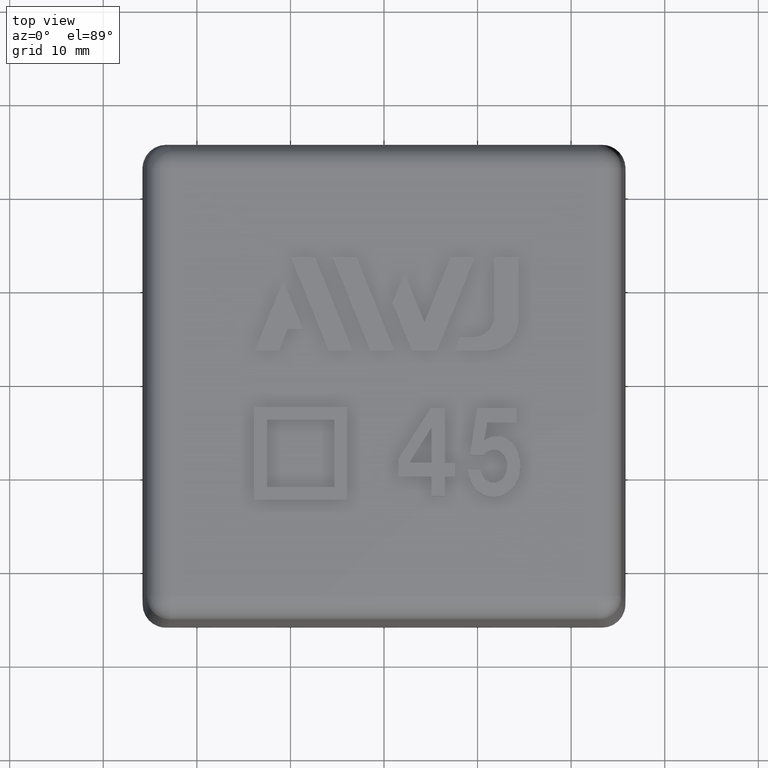
[diagram: clean part render]
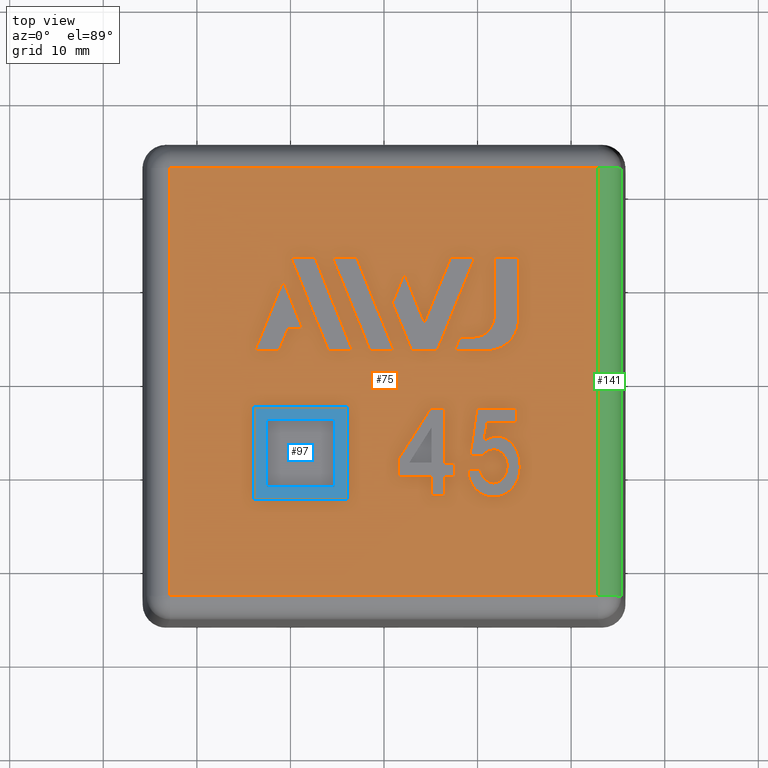
[diagram: same view with three faces highlighted in distinct colors, each labeled with its STEP entity id]
A machine part, top view with three faces highlighted in distinct colors.
Their STEP definitions:

[orange] entity #75 — the highlighted planar face has unit normal (0, 0, 1).
#75 = ADVANCED_FACE( '', ( #169, #170, #171, #172, #173, #174, #175, #176, #177 ), #178, .T. );
#169 = FACE_BOUND( '', #366, .T. );
#170 = FACE_OUTER_BOUND( '', #367, .T. );
#171 = FACE_BOUND( '', #368, .T. );
#172 = FACE_BOUND( '', #369, .T. );
#173 = FACE_BOUND( '', #370, .T. );
#174 = FACE_BOUND( '', #371, .T. );
#175 = FACE_BOUND( '', #372, .T. );
#176 = FACE_BOUND( '', #373, .T. );
#177 = FACE_BOUND( '', #374, .T. );
#178 = PLANE( '', #375 );
#366 = EDGE_LOOP( '', ( #566, #567, #568, #569, #570, #571, #572, #573, #574, #575, #576 ) );
#367 = EDGE_LOOP( '', ( #577, #578, #579, #580 ) );
#368 = EDGE_LOOP( '', ( #581, #582, #583, #584, #585, #586, #587, #588 ) );
#369 = EDGE_LOOP( '', ( #589, #590, #591, #592, #593, #594, #595 ) );
#370 = EDGE_LOOP( '', ( #596, #597, #598, #599 ) );
#371 = EDGE_LOOP( '', ( #600, #601, #602, #603 ) );
#372 = EDGE_LOOP( '', ( #604, #605, #606, #607, #608 ) );
#373 = EDGE_LOOP( '', ( #609, #610, #611, #612 ) );
#374 = EDGE_LOOP( '', ( #613, #614, #615, #616, #617, #618, #619, #620, #621, #622 ) );
#375 = AXIS2_PLACEMENT_3D( '', #623, #624, #625 );
#566 = ORIENTED_EDGE( '', *, *, #1324, .T. );
#567 = ORIENTED_EDGE( '', *, *, #1325, .T. );
#568 = ORIENTED_EDGE( '', *, *, #1326, .T. );
#569 = ORIENTED_EDGE( '', *, *, #1327, .T. );
#570 = ORIENTED_EDGE( '', *, *, #1328, .T. );
#571 = ORIENTED_EDGE( '', *, *, #1329, .T. );
#572 = ORIENTED_EDGE( '', *, *, #1330, .T. );
#573 = ORIENTED_EDGE( '', *, *, #1331, .T. );
#574 = ORIENTED_EDGE( '', *, *, #1332, .T. );
#575 = ORIENTED_EDGE( '', *, *, #1333, .T. );
#576 = ORIENTED_EDGE( '', *, *, #1334, .T. );
#577 = ORIENTED_EDGE( '', *, *, #1335, .T. );
#578 = ORIENTED_EDGE( '', *, *, #1336, .T. );
#579 = ORIENTED_EDGE( '', *, *, #1337, .T. );
#580 = ORIENTED_EDGE( '', *, *, #1338, .T. );
#581 = ORIENTED_EDGE( '', *, *, #1339, .F. );
#582 = ORIENTED_EDGE( '', *, *, #1340, .F. );
#583 = ORIENTED_EDGE( '', *, *, #1341, .F. );
#584 = ORIENTED_EDGE( '', *, *, #1342, .F. );
#585 = ORIENTED_EDGE( '', *, *, #1343, .F. );
#586 = ORIENTED_EDGE( '', *, *, #1344, .F. );
#587 = ORIENTED_EDGE( '', *, *, #1345, .F. );
#588 = ORIENTED_EDGE( '', *, *, #1346, .F. );
#589 = ORIENTED_EDGE( '', *, *, #1347, .F. );
#590 = ORIENTED_EDGE( '', *, *, #1348, .F. );
#591 = ORIENTED_EDGE( '', *, *, #1349, .F. );
#592 = ORIENTED_EDGE( '', *, *, #1350, .F. );
#593 = ORIENTED_EDGE( '', *, *, #1351, .F. );
#594 = ORIENTED_EDGE( '', *, *, #1352, .F. );
#595 = ORIENTED_EDGE( '', *, *, #1353, .F. );
#596 = ORIENTED_EDGE( '', *, *, #1354, .F. );
#597 = ORIENTED_EDGE( '', *, *, #1355, .F. );
#598 = ORIENTED_EDGE( '', *, *, #1356, .F. );
#599 = ORIENTED_EDGE( '', *, *, #1357, .F. );
#600 = ORIENTED_EDGE( '', *, *, #1358, .F. );
#601 = ORIENTED_EDGE( '', *, *, #1359, .F. );
#602 = ORIENTED_EDGE( '', *, *, #1360, .F. );
#603 = ORIENTED_EDGE( '', *, *, #1361, .F. );
#604 = ORIENTED_EDGE( '', *, *, #1362, .F. );
#605 = ORIENTED_EDGE( '', *, *, #1363, .F. );
#606 = ORIENTED_EDGE( '', *, *, #1364, .F. );
#607 = ORIENTED_EDGE( '', *, *, #1365, .F. );
#608 = ORIENTED_EDGE( '', *, *, #1366, .F. );
#609 = ORIENTED_EDGE( '', *, *, #1367, .T. );
#610 = ORIENTED_EDGE( '', *, *, #1368, .T. );
#611 = ORIENTED_EDGE( '', *, *, #1369, .T. );
#612 = ORIENTED_EDGE( '', *, *, #1370, .T. );
#613 = ORIENTED_EDGE( '', *, *, #1371, .T. );
#614 = ORIENTED_EDGE( '', *, *, #1372, .T. );
#615 = ORIENTED_EDGE( '', *, *, #1373, .T. );
#616 = ORIENTED_EDGE( '', *, *, #1374, .T. );
#617 = ORIENTED_EDGE( '', *, *, #1375, .T. );
#618 = ORIENTED_EDGE( '', *, *, #1376, .T. );
#619 = ORIENTED_EDGE( '', *, *, #1377, .T. );
#620 = ORIENTED_EDGE( '', *, *, #1378, .T. );
#621 = ORIENTED_EDGE( '', *, *, #1379, .T. );
#622 = ORIENTED_EDGE( '', *, *, #1380, .T. );
#623 = CARTESIAN_POINT( '', ( -25.8000000000000, -25.8000000000000, 27.5000000000000 ) );
#624 = DIRECTION( '', ( 0.000000000000000, 0.000000000000000, 1.00000000000000 ) );
#625 = DIRECTION( '', ( 0.000000000000000, -1.00000000000000, 0.000000000000000 ) );
#1324 = EDGE_CURVE( '', #1552, #1553, #1554, .T. );
#1325 = EDGE_CURVE( '', #1553, #1555, #1556, .T. );
#1326 = EDGE_CURVE( '', #1555, #1557, #1558, .T. );
#1327 = EDGE_CURVE( '', #1557, #1559, #1560, .T. );
#1328 = EDGE_CURVE( '', #1559, #1561, #1562, .T. );
#1329 = EDGE_CURVE( '', #1561, #1563, #1564, .T. );
#1330 = EDGE_CURVE( '', #1563, #1565, #1566, .T. );
#1331 = EDGE_CURVE( '', #1565, #1567, #1568, .T. );
#1332 = EDGE_CURVE( '', #1567, #1569, #1570, .T. );
#1333 = EDGE_CURVE( '', #1569, #1571, #1572, .T. );
#1334 = EDGE_CURVE( '', #1571, #1552, #1573, .T. );
#1335 = EDGE_CURVE( '', #1574, #1575, #1576, .F. );
#1336 = EDGE_CURVE( '', #1575, #1577, #1578, .F. );
#1337 = EDGE_CURVE( '', #1577, #1579, #1580, .F. );
#1338 = EDGE_CURVE( '', #1579, #1574, #1581, .F. );
#1339 = EDGE_CURVE( '', #1582, #1583, #1584, .T. );
#1340 = EDGE_CURVE( '', #1585, #1582, #1586, .T. );
#1341 = EDGE_CURVE( '', #1587, #1585, #1588, .T. );
#1342 = EDGE_CURVE( '', #1589, #1587, #1590, .T. );
#1343 = EDGE_CURVE( '', #1591, #1589, #1592, .T. );
#1344 = EDGE_CURVE( '', #1593, #1591, #1594, .T. );
#1345 = EDGE_CURVE( '', #1595, #1593, #1596, .T. );
#1346 = EDGE_CURVE( '', #1583, #1595, #1597, .T. );
#1347 = EDGE_CURVE( '', #1598, #1599, #1600, .T. );
#1348 = EDGE_CURVE( '', #1601, #1598, #1602, .T. );
#1349 = EDGE_CURVE( '', #1603, #1601, #1604, .T. );
#1350 = EDGE_CURVE( '', #1605, #1603, #1606, .T. );
#1351 = EDGE_CURVE( '', #1607, #1605, #1608, .T. );
#1352 = EDGE_CURVE( '', #1609, #1607, #1610, .T. );
#1353 = EDGE_CURVE( '', #1599, #1609, #1611, .T. );
#1354 = EDGE_CURVE( '', #1612, #1613, #1614, .T. );
#1355 = EDGE_CURVE( '', #1615, #1612, #1616, .T. );
#1356 = EDGE_CURVE( '', #1617, #1615, #1618, .T. );
#1357 = EDGE_CURVE( '', #1613, #1617, #1619, .T. );
#1358 = EDGE_CURVE( '', #1620, #1621, #1622, .T. );
#1359 = EDGE_CURVE( '', #1623, #1620, #1624, .T. );
#1360 = EDGE_CURVE( '', #1625, #1623, #1626, .T. );
#1361 = EDGE_CURVE( '', #1621, #1625, #1627, .T. );
#1362 = EDGE_CURVE( '', #1628, #1629, #1630, .T. );
#1363 = EDGE_CURVE( '', #1631, #1628, #1632, .T. );
#1364 = EDGE_CURVE( '', #1633, #1631, #1634, .T. );
#1365 = EDGE_CURVE( '', #1635, #1633, #1636, .T. );
#1366 = EDGE_CURVE( '', #1629, #1635, #1637, .T. );
#1367 = EDGE_CURVE( '', #1638, #1639, #1640, .T. );
#1368 = EDGE_CURVE( '', #1639, #1641, #1642, .T. );
#1369 = EDGE_CURVE( '', #1641, #1643, #1644, .T. );
#1370 = EDGE_CURVE( '', #1643, #1638, #1645, .T. );
#1371 = EDGE_CURVE( '', #1646, #1647, #1648, .T. );
#1372 = EDGE_CURVE( '', #1647, #1649, #1650, .T. );
#1373 = EDGE_CURVE( '', #1649, #1651, #1652, .T. );
#1374 = EDGE_CURVE( '', #1651, #1653, #1654, .T. );
#1375 = EDGE_CURVE( '', #1653, #1655, #1656, .T. );
#1376 = EDGE_CURVE( '', #1655, #1657, #1658, .T. );
#1377 = EDGE_CURVE( '', #1657, #1659, #1660, .T. );
#1378 = EDGE_CURVE( '', #1659, #1661, #1662, .T. );
#1379 = EDGE_CURVE( '', #1661, #1663, #1664, .T. );
#1380 = EDGE_CURVE( '', #1663, #1646, #1665, .T. );
#1552 = VERTEX_POINT( '', #1928 );
#1553 = VERTEX_POINT( '', #1929 );
#1554 = B_SPLINE_CURVE_WITH_KNOTS( '', 2, ( #1930, #1931, #1932 ), .UNSPECIFIED., .F., .F., ( 3, 3 ), ( 10.0000000000000, 11.0000000000000 ), .UNSPECIFIED. );
#1555 = VERTEX_POINT( '', #1933 );
#1556 = B_SPLINE_CURVE_WITH_KNOTS( '', 2, ( #1934, #1935, #1936 ), .UNSPECIFIED., .F., .F., ( 3, 3 ), ( 0.000000000000000, 1.00000000000000 ), .UNSPECIFIED. );
#1557 = VERTEX_POINT( '', #1937 );
#1558 = B_SPLINE_CURVE_WITH_KNOTS( '', 2, ( #1938, #1939, #1940 ), .UNSPECIFIED., .F., .F., ( 3, 3 ), ( 1.00000000000000, 2.00000000000000 ), .UNSPECIFIED. );
#1559 = VERTEX_POINT( '', #1941 );
#1560 = B_SPLINE_CURVE_WITH_KNOTS( '', 2, ( #1942, #1943, #1944 ), .UNSPECIFIED., .F., .F., ( 3, 3 ), ( 2.00000000000000, 3.00000000000000 ), .UNSPECIFIED. );
#1561 = VERTEX_POINT( '', #1945 );
#1562 = B_SPLINE_CURVE_WITH_KNOTS( '', 2, ( #1946, #1947, #1948 ), .UNSPECIFIED., .F., .F., ( 3, 3 ), ( 3.00000000000000, 4.00000000000000 ), .UNSPECIFIED. );
#1563 = VERTEX_POINT( '', #1949 );
#1564 = B_SPLINE_CURVE_WITH_KNOTS( '', 2, ( #1950, #1951, #1952 ), .UNSPECIFIED., .F., .F., ( 3, 3 ), ( 4.00000000000000, 5.00000000000000 ), .UNSPECIFIED. );
#1565 = VERTEX_POINT( '', #1953 );
#1566 = B_SPLINE_CURVE_WITH_KNOTS( '', 2, ( #1954, #1955, #1956 ), .UNSPECIFIED., .F., .F., ( 3, 3 ), ( 5.00000000000000, 6.00000000000000 ), .UNSPECIFIED. );
#1567 = VERTEX_POINT( '', #1957 );
#1568 = B_SPLINE_CURVE_WITH_KNOTS( '', 2, ( #1958, #1959, #1960 ), .UNSPECIFIED., .F., .F., ( 3, 3 ), ( 6.00000000000000, 7.00000000000000 ), .UNSPECIFIED. );
#1569 = VERTEX_POINT( '', #1961 );
#1570 = B_SPLINE_CURVE_WITH_KNOTS( '', 2, ( #1962, #1963, #1964 ), .UNSPECIFIED., .F., .F., ( 3, 3 ), ( 7.00000000000000, 8.00000000000000 ), .UNSPECIFIED. );
#1571 = VERTEX_POINT( '', #1965 );
#1572 = B_SPLINE_CURVE_WITH_KNOTS( '', 2, ( #1966, #1967, #1968 ), .UNSPECIFIED., .F., .F., ( 3, 3 ), ( 8.00000000000000, 9.00000000000000 ), .UNSPECIFIED. );
#1573 = B_SPLINE_CURVE_WITH_KNOTS( '', 2, ( #1969, #1970, #1971 ), .UNSPECIFIED., .F., .F., ( 3, 3 ), ( 9.00000000000000, 10.0000000000000 ), .UNSPECIFIED. );
#1574 = VERTEX_POINT( '', #1972 );
#1575 = VERTEX_POINT( '', #1973 );
#1576 = LINE( '', #1974, #1975 );
#1577 = VERTEX_POINT( '', #1976 );
#1578 = LINE( '', #1977, #1978 );
#1579 = VERTEX_POINT( '', #1979 );
#1580 = LINE( '', #1980, #1981 );
#1581 = LINE( '', #1982, #1983 );
#1582 = VERTEX_POINT( '', #1984 );
#1583 = VERTEX_POINT( '', #1985 );
#1584 = LINE( '', #1986, #1987 );
#1585 = VERTEX_POINT( '', #1988 );
#1586 = LINE( '', #1989, #1990 );
#1587 = VERTEX_POINT( '', #1991 );
#1588 = LINE( '', #1992, #1993 );
#1589 = VERTEX_POINT( '', #1994 );
#1590 = CIRCLE( '', #1995, 3.33666750000000 );
#1591 = VERTEX_POINT( '', #1996 );
#1592 = LINE( '', #1997, #1998 );
#1593 = VERTEX_POINT( '', #1999 );
#1594 = LINE( '', #2000, #2001 );
#1595 = VERTEX_POINT( '', #2002 );
#1596 = LINE( '', #2003, #2004 );
#1597 = CIRCLE( '', #2005, 2.22444500000000 );
#1598 = VERTEX_POINT( '', #2006 );
#1599 = VERTEX_POINT( '', #2007 );
#1600 = LINE( '', #2008, #2009 );
#1601 = VERTEX_POINT( '', #2010 );
#1602 = LINE( '', #2011, #2012 );
#1603 = VERTEX_POINT( '', #2013 );
#1604 = LINE( '', #2014, #2015 );
#1605 = VERTEX_POINT( '', #2016 );
#1606 = LINE( '', #2017, #2018 );
#1607 = VERTEX_POINT( '', #2019 );
#1608 = LINE( '', #2020, #2021 );
#1609 = VERTEX_POINT( '', #2022 );
#1610 = LINE( '', #2023, #2024 );
#1611 = LINE( '', #2025, #2026 );
#1612 = VERTEX_POINT( '', #2027 );
#1613 = VERTEX_POINT( '', #2028 );
#1614 = LINE( '', #2029, #2030 );
#1615 = VERTEX_POINT( '', #2031 );
#1616 = LINE( '', #2032, #2033 );
#1617 = VERTEX_POINT( '', #2034 );
#1618 = LINE( '', #2035, #2036 );
#1619 = LINE( '', #2037, #2038 );
#1620 = VERTEX_POINT( '', #2039 );
#1621 = VERTEX_POINT( '', #2040 );
#1622 = LINE( '', #2041, #2042 );
#1623 = VERTEX_POINT( '', #2043 );
#1624 = LINE( '', #2044, #2045 );
#1625 = VERTEX_POINT( '', #2046 );
#1626 = LINE( '', #2047, #2048 );
#1627 = LINE( '', #2049, #2050 );
#1628 = VERTEX_POINT( '', #2051 );
#1629 = VERTEX_POINT( '', #2052 );
#1630 = LINE( '', #2053, #2054 );
#1631 = VERTEX_POINT( '', #2055 );
#1632 = LINE( '', #2056, #2057 );
#1633 = VERTEX_POINT( '', #2058 );
#1634 = LINE( '', #2059, #2060 );
#1635 = VERTEX_POINT( '', #2061 );
#1636 = LINE( '', #2062, #2063 );
#1637 = LINE( '', #2064, #2065 );
#1638 = VERTEX_POINT( '', #2066 );
#1639 = VERTEX_POINT( '', #2067 );
#1640 = B_SPLINE_CURVE_WITH_KNOTS( '', 2, ( #2068, #2069, #2070 ), .UNSPECIFIED., .F., .F., ( 3, 3 ), ( 3.00000000000000, 4.00000000000000 ), .UNSPECIFIED. );
#1641 = VERTEX_POINT( '', #2071 );
#1642 = B_SPLINE_CURVE_WITH_KNOTS( '', 2, ( #2072, #2073, #2074 ), .UNSPECIFIED., .F., .F., ( 3, 3 ), ( 0.000000000000000, 1.00000000000000 ), .UNSPECIFIED. );
#1643 = VERTEX_POINT( '', #2075 );
#1644 = B_SPLINE_CURVE_WITH_KNOTS( '', 2, ( #2076, #2077, #2078 ), .UNSPECIFIED., .F., .F., ( 3, 3 ), ( 1.00000000000000, 2.00000000000000 ), .UNSPECIFIED. );
#1645 = B_SPLINE_CURVE_WITH_KNOTS( '', 2, ( #2079, #2080, #2081 ), .UNSPECIFIED., .F., .F., ( 3, 3 ), ( 2.00000000000000, 3.00000000000000 ), .UNSPECIFIED. );
#1646 = VERTEX_POINT( '', #2082 );
#1647 = VERTEX_POINT( '', #2083 );
#1648 = B_SPLINE_CURVE_WITH_KNOTS( '', 2, ( #2084, #2085, #2086, #2087, #2088, #2089, #2090, #2091, #2092, #2093, #2094, #2095, #2096 ), .UNSPECIFIED., .F., .F., ( 3, 2, 2, 2, 2, 2, 3 ), ( 14.0000000000000, 15.0000000000000, 16.0000000000000, 17.0000000000000, 18.0000000000000, 19.0000000000000, 20.0000000000000 ), .UNSPECIFIED. );
#1649 = VERTEX_POINT( '', #2097 );
#1650 = B_SPLINE_CURVE_WITH_KNOTS( '', 2, ( #2098, #2099, #2100 ), .UNSPECIFIED., .F., .F., ( 3, 3 ), ( 0.000000000000000, 1.00000000000000 ), .UNSPECIFIED. );
#1651 = VERTEX_POINT( '', #2101 );
#1652 = B_SPLINE_CURVE_WITH_KNOTS( '', 2, ( #2102, #2103, #2104 ), .UNSPECIFIED., .F., .F., ( 3, 3 ), ( 1.00000000000000, 2.00000000000000 ), .UNSPECIFIED. );
#1653 = VERTEX_POINT( '', #2105 );
#1654 = B_SPLINE_CURVE_WITH_KNOTS( '', 2, ( #2106, #2107, #2108, #2109, #2110, #2111, #2112, #2113, #2114, #2115, #2116, #2117, #2118 ), .UNSPECIFIED., .F., .F., ( 3, 2, 2, 2, 2, 2, 3 ), ( 2.00000000000000, 3.00000000000000, 4.00000000000000, 5.00000000000000, 6.00000000000000, 7.00000000000000, 8.00000000000000 ), .UNSPECIFIED. );
#1655 = VERTEX_POINT( '', #2119 );
#1656 = B_SPLINE_CURVE_WITH_KNOTS( '', 2, ( #2120, #2121, #2122 ), .UNSPECIFIED., .F., .F., ( 3, 3 ), ( 8.00000000000000, 9.00000000000000 ), .UNSPECIFIED. );
#1657 = VERTEX_POINT( '', #2123 );
#1658 = B_SPLINE_CURVE_WITH_KNOTS( '', 2, ( #2124, #2125, #2126 ), .UNSPECIFIED., .F., .F., ( 3, 3 ), ( 9.00000000000000, 10.0000000000000 ), .UNSPECIFIED. );
#1659 = VERTEX_POINT( '', #2127 );
#1660 = B_SPLINE_CURVE_WITH_KNOTS( '', 2, ( #2128, #2129, #2130 ), .UNSPECIFIED., .F., .F., ( 3, 3 ), ( 10.0000000000000, 11.0000000000000 ), .UNSPECIFIED. );
#1661 = VERTEX_POINT( '', #2131 );
#1662 = B_SPLINE_CURVE_WITH_KNOTS( '', 2, ( #2132, #2133, #2134 ), .UNSPECIFIED., .F., .F., ( 3, 3 ), ( 11.0000000000000, 12.0000000000000 ), .UNSPECIFIED. );
#1663 = VERTEX_POINT( '', #2135 );
#1664 = B_SPLINE_CURVE_WITH_KNOTS( '', 2, ( #2136, #2137, #2138 ), .UNSPECIFIED., .F., .F., ( 3, 3 ), ( 12.0000000000000, 13.0000000000000 ), .UNSPECIFIED. );
#1665 = B_SPLINE_CURVE_WITH_KNOTS( '', 2, ( #2139, #2140, #2141 ), .UNSPECIFIED., .F., .F., ( 3, 3 ), ( 13.0000000000000, 14.0000000000000 ), .UNSPECIFIED. );
#1928 = CARTESIAN_POINT( '', ( 5.05988295454538, -10.1681000000000, 27.5000000000000 ) );
#1929 = CARTESIAN_POINT( '', ( 1.55988295454539, -10.1681000000000, 27.5000000000000 ) );
#1930 = CARTESIAN_POINT( '', ( 5.05988295454538, -10.1681000000000, 27.5000000000000 ) );
#1931 = CARTESIAN_POINT( '', ( 3.30988295454538, -10.1681000000000, 27.5000000000000 ) );
#1932 = CARTESIAN_POINT( '', ( 1.55988295454539, -10.1681000000000, 27.5000000000000 ) );
#1933 = CARTESIAN_POINT( '', ( 1.55988295454539, -8.21355454545456, 27.5000000000000 ) );
#1934 = CARTESIAN_POINT( '', ( 1.55988295454539, -10.1681000000000, 27.5000000000000 ) );
#1935 = CARTESIAN_POINT( '', ( 1.55988295454539, -9.19082727272729, 27.5000000000000 ) );
#1936 = CARTESIAN_POINT( '', ( 1.55988295454539, -8.21355454545456, 27.5000000000000 ) );
#1937 = CARTESIAN_POINT( '', ( 4.96897386363629, -2.84991818181821, 27.5000000000000 ) );
#1938 = CARTESIAN_POINT( '', ( 1.55988295454539, -8.21355454545456, 27.5000000000000 ) );
#1939 = CARTESIAN_POINT( '', ( 3.26442840909084, -5.53173636363639, 27.5000000000000 ) );
#1940 = CARTESIAN_POINT( '', ( 4.96897386363629, -2.84991818181821, 27.5000000000000 ) );
#1941 = CARTESIAN_POINT( '', ( 6.51442840909084, -2.84991818181821, 27.5000000000000 ) );
#1942 = CARTESIAN_POINT( '', ( 4.96897386363629, -2.84991818181821, 27.5000000000000 ) );
#1943 = CARTESIAN_POINT( '', ( 5.74170113636356, -2.84991818181821, 27.5000000000000 ) );
#1944 = CARTESIAN_POINT( '', ( 6.51442840909084, -2.84991818181821, 27.5000000000000 ) );
#1945 = CARTESIAN_POINT( '', ( 6.51442840909084, -8.71355454545456, 27.5000000000000 ) );
#1946 = CARTESIAN_POINT( '', ( 6.51442840909084, -2.84991818181821, 27.5000000000000 ) );
#1947 = CARTESIAN_POINT( '', ( 6.51442840909084, -5.78173636363639, 27.5000000000000 ) );
#1948 = CARTESIAN_POINT( '', ( 6.51442840909084, -8.71355454545456, 27.5000000000000 ) );
#1949 = CARTESIAN_POINT( '', ( 7.55988295454538, -8.71355454545456, 27.5000000000000 ) );
#1950 = CARTESIAN_POINT( '', ( 6.51442840909084, -8.71355454545456, 27.5000000000000 ) );
#1951 = CARTESIAN_POINT( '', ( 7.03715568181811, -8.71355454545456, 27.5000000000000 ) );
#1952 = CARTESIAN_POINT( '', ( 7.55988295454538, -8.71355454545456, 27.5000000000000 ) );
#1953 = CARTESIAN_POINT( '', ( 7.55988295454538, -10.1681000000000, 27.5000000000000 ) );
#1954 = CARTESIAN_POINT( '', ( 7.55988295454538, -8.71355454545456, 27.5000000000000 ) );
#1955 = CARTESIAN_POINT( '', ( 7.55988295454538, -9.44082727272729, 27.5000000000000 ) );
#1956 = CARTESIAN_POINT( '', ( 7.55988295454538, -10.1681000000000, 27.5000000000000 ) );
#1957 = CARTESIAN_POINT( '', ( 6.51442840909084, -10.1681000000000, 27.5000000000000 ) );
#1958 = CARTESIAN_POINT( '', ( 7.55988295454538, -10.1681000000000, 27.5000000000000 ) );
#1959 = CARTESIAN_POINT( '', ( 7.03715568181811, -10.1681000000000, 27.5000000000000 ) );
#1960 = CARTESIAN_POINT( '', ( 6.51442840909084, -10.1681000000000, 27.5000000000000 ) );
#1961 = CARTESIAN_POINT( '', ( 6.51442840909084, -12.2135545454546, 27.5000000000000 ) );
#1962 = CARTESIAN_POINT( '', ( 6.51442840909084, -10.1681000000000, 27.5000000000000 ) );
#1963 = CARTESIAN_POINT( '', ( 6.51442840909084, -11.1908272727273, 27.5000000000000 ) );
#1964 = CARTESIAN_POINT( '', ( 6.51442840909084, -12.2135545454546, 27.5000000000000 ) );
#1965 = CARTESIAN_POINT( '', ( 5.05988295454538, -12.2135545454546, 27.5000000000000 ) );
#1966 = CARTESIAN_POINT( '', ( 6.51442840909084, -12.2135545454546, 27.5000000000000 ) );
#1967 = CARTESIAN_POINT( '', ( 5.78715568181811, -12.2135545454546, 27.5000000000000 ) );
#1968 = CARTESIAN_POINT( '', ( 5.05988295454538, -12.2135545454546, 27.5000000000000 ) );
#1969 = CARTESIAN_POINT( '', ( 5.05988295454538, -12.2135545454546, 27.5000000000000 ) );
#1970 = CARTESIAN_POINT( '', ( 5.05988295454538, -11.1908272727273, 27.5000000000000 ) );
#1971 = CARTESIAN_POINT( '', ( 5.05988295454538, -10.1681000000000, 27.5000000000000 ) );
#1972 = CARTESIAN_POINT( '', ( -22.8632425566848, -22.8632425566848, 27.5000000000000 ) );
#1973 = CARTESIAN_POINT( '', ( 22.8632425566848, -22.8632425566848, 27.5000000000000 ) );
#1974 = CARTESIAN_POINT( '', ( 22.8203664765830, -22.8632425566848, 27.5000000000000 ) );
#1975 = VECTOR( '', #2616, 1000.00000000000 );
#1976 = CARTESIAN_POINT( '', ( 22.8632425566848, 22.8632425566848, 27.5000000000000 ) );
#1977 = CARTESIAN_POINT( '', ( 22.8632425566848, 22.8203664765830, 27.5000000000000 ) );
#1978 = VECTOR( '', #2617, 1000.00000000000 );
#1979 = CARTESIAN_POINT( '', ( -22.8632425566848, 22.8632425566848, 27.5000000000000 ) );
#1980 = CARTESIAN_POINT( '', ( -22.8203664765830, 22.8632425566848, 27.5000000000000 ) );
#1981 = VECTOR( '', #2618, 1000.00000000000 );
#1982 = CARTESIAN_POINT( '', ( -22.8632425566848, -22.8203664765830, 27.5000000000000 ) );
#1983 = VECTOR( '', #2619, 1000.00000000000 );
#1984 = CARTESIAN_POINT( '', ( 11.7742270843900, 13.3295783770600, 27.5000000000000 ) );
#1985 = CARTESIAN_POINT( '', ( 11.7742270843900, 7.00592279439248, 27.5000000000000 ) );
#1986 = CARTESIAN_POINT( '', ( 11.7742270843900, 13.3295783770600, 27.5000000000000 ) );
#1987 = VECTOR( '', #2620, 1000.00000000000 );
#1988 = CARTESIAN_POINT( '', ( 14.3883347883750, 13.3295783770600, 27.5000000000000 ) );
#1989 = CARTESIAN_POINT( '', ( 14.3883347883750, 13.3295783770600, 27.5000000000000 ) );
#1990 = VECTOR( '', #2621, 1000.00000000000 );
#1991 = CARTESIAN_POINT( '', ( 14.3883347883750, 6.66356624999996, 27.5000000000000 ) );
#1992 = CARTESIAN_POINT( '', ( 14.3883347883750, 6.66356624999996, 27.5000000000000 ) );
#1993 = VECTOR( '', #2622, 1000.00000000000 );
#1994 = CARTESIAN_POINT( '', ( 11.0516672883750, 3.32689874999996, 27.5000000000000 ) );
#1995 = AXIS2_PLACEMENT_3D( '', #2623, #2624, #2625 );
#1996 = CARTESIAN_POINT( '', ( 7.54128954165747, 3.32689874999996, 27.5000000000000 ) );
#1997 = CARTESIAN_POINT( '', ( 7.54128954165747, 3.32689874999996, 27.5000000000000 ) );
#1998 = VECTOR( '', #2626, 1000.00000000000 );
#1999 = CARTESIAN_POINT( '', ( 8.12897678843246, 4.78147779439248, 27.5000000000000 ) );
#2000 = CARTESIAN_POINT( '', ( 8.12897678843246, 4.78147779439248, 27.5000000000000 ) );
#2001 = VECTOR( '', #2627, 1000.00000000000 );
#2002 = CARTESIAN_POINT( '', ( 9.54978208438996, 4.78147779439248, 27.5000000000000 ) );
#2003 = CARTESIAN_POINT( '', ( 9.54978208438996, 4.78147779439248, 27.5000000000000 ) );
#2004 = VECTOR( '', #2628, 1000.00000000000 );
#2005 = AXIS2_PLACEMENT_3D( '', #2629, #2630, #2631 );
#2006 = CARTESIAN_POINT( '', ( 9.72260366532997, 13.3295783770600, 27.5000000000000 ) );
#2007 = CARTESIAN_POINT( '', ( 7.13780969755497, 13.3295783770600, 27.5000000000000 ) );
#2008 = CARTESIAN_POINT( '', ( 9.72260366532997, 13.3295783770600, 27.5000000000000 ) );
#2009 = VECTOR( '', #2632, 1000.00000000000 );
#2010 = CARTESIAN_POINT( '', ( 5.68146110716495, 3.32689874999996, 27.5000000000000 ) );
#2011 = CARTESIAN_POINT( '', ( 5.68146110716495, 3.32689874999996, 27.5000000000000 ) );
#2012 = VECTOR( '', #2633, 1000.00000000000 );
#2013 = CARTESIAN_POINT( '', ( 2.94909412142246, 3.32689874999996, 27.5000000000000 ) );
#2014 = CARTESIAN_POINT( '', ( 2.94909412142246, 3.32689874999996, 27.5000000000000 ) );
#2015 = VECTOR( '', #2634, 1000.00000000000 );
#2016 = CARTESIAN_POINT( '', ( 0.889783020442474, 8.42298323719248, 27.5000000000000 ) );
#2017 = CARTESIAN_POINT( '', ( 0.889783020442474, 8.42298323719248, 27.5000000000000 ) );
#2018 = VECTOR( '', #2635, 1000.00000000000 );
#2019 = CARTESIAN_POINT( '', ( 2.18218000432997, 11.6223379717875, 27.5000000000000 ) );
#2020 = CARTESIAN_POINT( '', ( 2.18218000432997, 11.6223379717875, 27.5000000000000 ) );
#2021 = VECTOR( '', #2636, 1000.00000000000 );
#2022 = CARTESIAN_POINT( '', ( 4.31499344144497, 6.34368327344247, 27.5000000000000 ) );
#2023 = CARTESIAN_POINT( '', ( 4.31499344144497, 6.34368327344247, 27.5000000000000 ) );
#2024 = VECTOR( '', #2637, 1000.00000000000 );
#2025 = CARTESIAN_POINT( '', ( 7.13780969755497, 13.3295783770600, 27.5000000000000 ) );
#2026 = VECTOR( '', #2638, 1000.00000000000 );
#2027 = CARTESIAN_POINT( '', ( 1.08926679915246, 3.32689874999996, 27.5000000000000 ) );
#2028 = CARTESIAN_POINT( '', ( -2.95251083806004, 13.3295783770600, 27.5000000000000 ) );
#2029 = CARTESIAN_POINT( '', ( 1.08926679915246, 3.32689874999996, 27.5000000000000 ) );
#2030 = VECTOR( '', #2639, 1000.00000000000 );
#2031 = CARTESIAN_POINT( '', ( -1.49549380194754, 3.32689874999996, 27.5000000000000 ) );
#2032 = CARTESIAN_POINT( '', ( -1.49549380194754, 3.32689874999996, 27.5000000000000 ) );
#2033 = VECTOR( '', #2640, 1000.00000000000 );
#2034 = CARTESIAN_POINT( '', ( -5.53727032693753, 13.3295783770600, 27.5000000000000 ) );
#2035 = CARTESIAN_POINT( '', ( -5.53727032693753, 13.3295783770600, 27.5000000000000 ) );
#2036 = VECTOR( '', #2641, 1000.00000000000 );
#2037 = CARTESIAN_POINT( '', ( -2.95251083806004, 13.3295783770600, 27.5000000000000 ) );
#2038 = VECTOR( '', #2642, 1000.00000000000 );
#2039 = CARTESIAN_POINT( '', ( -3.35538785756753, 3.32689874999996, 27.5000000000000 ) );
#2040 = CARTESIAN_POINT( '', ( -7.39716549478004, 13.3295783770600, 27.5000000000000 ) );
#2041 = CARTESIAN_POINT( '', ( -3.35538785756753, 3.32689874999996, 27.5000000000000 ) );
#2042 = VECTOR( '', #2643, 1000.00000000000 );
#2043 = CARTESIAN_POINT( '', ( -5.93996382973254, 3.32689874999996, 27.5000000000000 ) );
#2044 = CARTESIAN_POINT( '', ( -5.93996382973254, 3.32689874999996, 27.5000000000000 ) );
#2045 = VECTOR( '', #2644, 1000.00000000000 );
#2046 = CARTESIAN_POINT( '', ( -9.98117312124753, 13.3295783770600, 27.5000000000000 ) );
#2047 = CARTESIAN_POINT( '', ( -9.98117312124753, 13.3295783770600, 27.5000000000000 ) );
#2048 = VECTOR( '', #2645, 1000.00000000000 );
#2049 = CARTESIAN_POINT( '', ( -7.39716549478004, 13.3295783770600, 27.5000000000000 ) );
#2050 = VECTOR( '', #2646, 1000.00000000000 );
#2051 = CARTESIAN_POINT( '', ( -13.8014227298000, 3.32689874999996, 27.5000000000000 ) );
#2052 = CARTESIAN_POINT( '', ( -11.2174151033325, 3.32689874999996, 27.5000000000000 ) );
#2053 = CARTESIAN_POINT( '', ( -13.8014227298000, 3.32689874999996, 27.5000000000000 ) );
#2054 = VECTOR( '', #2647, 1000.00000000000 );
#2055 = CARTESIAN_POINT( '', ( -10.7717197420200, 10.8266439852850, 27.5000000000000 ) );
#2056 = CARTESIAN_POINT( '', ( -10.7717197420200, 10.8266439852850, 27.5000000000000 ) );
#2057 = VECTOR( '', #2648, 1000.00000000000 );
#2058 = CARTESIAN_POINT( '', ( -8.67599113972253, 5.63713614475997, 27.5000000000000 ) );
#2059 = CARTESIAN_POINT( '', ( -8.67599113972254, 5.63713614475997, 27.5000000000000 ) );
#2060 = VECTOR( '', #2649, 1000.00000000000 );
#2061 = CARTESIAN_POINT( '', ( -10.2833395056025, 5.63713614475997, 27.5000000000000 ) );
#2062 = CARTESIAN_POINT( '', ( -10.2833395056025, 5.63713614475997, 27.5000000000000 ) );
#2063 = VECTOR( '', #2650, 1000.00000000000 );
#2064 = CARTESIAN_POINT( '', ( -11.2174151033325, 3.32689874999996, 27.5000000000000 ) );
#2065 = VECTOR( '', #2651, 1000.00000000000 );
#2066 = CARTESIAN_POINT( '', ( -3.94011704545460, -12.6226454545455, 27.5000000000000 ) );
#2067 = CARTESIAN_POINT( '', ( -13.8946625000000, -12.6226454545455, 27.5000000000000 ) );
#2068 = CARTESIAN_POINT( '', ( -3.94011704545460, -12.6226454545455, 27.5000000000000 ) );
#2069 = CARTESIAN_POINT( '', ( -8.91738977272732, -12.6226454545455, 27.5000000000000 ) );
#2070 = CARTESIAN_POINT( '', ( -13.8946625000000, -12.6226454545455, 27.5000000000000 ) );
#2071 = CARTESIAN_POINT( '', ( -13.8946625000000, -2.71355454545457, 27.5000000000000 ) );
#2072 = CARTESIAN_POINT( '', ( -13.8946625000000, -12.6226454545455, 27.5000000000000 ) );
#2073 = CARTESIAN_POINT( '', ( -13.8946625000000, -7.66810000000002, 27.5000000000000 ) );
#2074 = CARTESIAN_POINT( '', ( -13.8946625000000, -2.71355454545457, 27.5000000000000 ) );
#2075 = CARTESIAN_POINT( '', ( -3.94011704545460, -2.71355454545457, 27.5000000000000 ) );
#2076 = CARTESIAN_POINT( '', ( -13.8946625000000, -2.71355454545457, 27.5000000000000 ) );
#2077 = CARTESIAN_POINT( '', ( -8.91738977272732, -2.71355454545457, 27.5000000000000 ) );
#2078 = CARTESIAN_POINT( '', ( -3.94011704545460, -2.71355454545457, 27.5000000000000 ) );
#2079 = CARTESIAN_POINT( '', ( -3.94011704545460, -2.71355454545457, 27.5000000000000 ) );
#2080 = CARTESIAN_POINT( '', ( -3.94011704545460, -7.66810000000002, 27.5000000000000 ) );
#2081 = CARTESIAN_POINT( '', ( -3.94011704545460, -12.6226454545455, 27.5000000000000 ) );
#2082 = CARTESIAN_POINT( '', ( 10.6962465909090, -6.25900909090911, 27.5000000000000 ) );
#2083 = CARTESIAN_POINT( '', ( 9.68103036026299, -11.3628289229724, 27.5000000000000 ) );
#2084 = CARTESIAN_POINT( '', ( 10.6962465909090, -6.25900909090911, 27.5000000000000 ) );
#2085 = CARTESIAN_POINT( '', ( 12.1053374999999, -5.39537272727275, 27.5000000000000 ) );
#2086 = CARTESIAN_POINT( '', ( 13.2853027576722, -6.21621812391432, 27.5000000000000 ) );
#2087 = CARTESIAN_POINT( '', ( 14.1962465909090, -6.84991818181820, 27.5000000000000 ) );
#2088 = CARTESIAN_POINT( '', ( 14.4689738636363, -8.16810000000002, 27.5000000000000 ) );
#2089 = CARTESIAN_POINT( '', ( 14.7417011363636, -9.48628181818183, 27.5000000000000 ) );
#2090 = CARTESIAN_POINT( '', ( 14.2183250208873, -10.6327247377964, 27.5000000000000 ) );
#2091 = CARTESIAN_POINT( '', ( 13.7871556818181, -11.5771909090909, 27.5000000000000 ) );
#2092 = CARTESIAN_POINT( '', ( 12.9190264122437, -12.0229870204940, 27.5000000000000 ) );
#2093 = CARTESIAN_POINT( '', ( 12.1053374999999, -12.4408272727273, 27.5000000000000 ) );
#2094 = CARTESIAN_POINT( '', ( 11.2399528846153, -12.2677503496504, 27.5000000000000 ) );
#2095 = CARTESIAN_POINT( '', ( 10.2871556818181, -12.0771909090909, 27.5000000000000 ) );
#2096 = CARTESIAN_POINT( '', ( 9.68103036026299, -11.3628289229724, 27.5000000000000 ) );
#2097 = CARTESIAN_POINT( '', ( 8.96897386363628, -9.39537272727274, 27.5000000000000 ) );
#2098 = CARTESIAN_POINT( '', ( 9.68103036026299, -11.3628289229724, 27.5000000000000 ) );
#2099 = CARTESIAN_POINT( '', ( 9.01442840909083, -10.5771909090909, 27.5000000000000 ) );
#2100 = CARTESIAN_POINT( '', ( 8.96897386363628, -9.39537272727274, 27.5000000000000 ) );
#2101 = CARTESIAN_POINT( '', ( 10.2871556818181, -9.39537272727274, 27.5000000000000 ) );
#2102 = CARTESIAN_POINT( '', ( 8.96897386363628, -9.39537272727274, 27.5000000000000 ) );
#2103 = CARTESIAN_POINT( '', ( 9.62806477272719, -9.39537272727274, 27.5000000000000 ) );
#2104 = CARTESIAN_POINT( '', ( 10.2871556818181, -9.39537272727274, 27.5000000000000 ) );
#2105 = CARTESIAN_POINT( '', ( 10.6053374999999, -7.84991818181820, 27.5000000000000 ) );
#2106 = CARTESIAN_POINT( '', ( 10.2871556818181, -9.39537272727274, 27.5000000000000 ) );
#2107 = CARTESIAN_POINT( '', ( 10.4235193181817, -10.1226454545455, 27.5000000000000 ) );
#2108 = CARTESIAN_POINT( '', ( 10.9321519516678, -10.5207057764041, 27.5000000000000 ) );
#2109 = CARTESIAN_POINT( '', ( 11.4689738636363, -10.9408272727273, 27.5000000000000 ) );
#2110 = CARTESIAN_POINT( '', ( 12.0190159157809, -10.7741478629865, 27.5000000000000 ) );
#2111 = CARTESIAN_POINT( '', ( 12.9689738636363, -10.4862818181818, 27.5000000000000 ) );
#2112 = CARTESIAN_POINT( '', ( 13.1245827830188, -9.35255969125216, 27.5000000000000 ) );
#2113 = CARTESIAN_POINT( '', ( 13.2871556818181, -8.16810000000002, 27.5000000000000 ) );
#2114 = CARTESIAN_POINT( '', ( 12.4689738636363, -7.53173636363638, 27.5000000000000 ) );
#2115 = CARTESIAN_POINT( '', ( 12.0598829545454, -7.21355454545456, 27.5000000000000 ) );
#2116 = CARTESIAN_POINT( '', ( 11.5144284090908, -7.30446363636366, 27.5000000000000 ) );
#2117 = CARTESIAN_POINT( '', ( 10.9689738636363, -7.39537272727275, 27.5000000000000 ) );
#2118 = CARTESIAN_POINT( '', ( 10.6053374999999, -7.84991818181820, 27.5000000000000 ) );
#2119 = CARTESIAN_POINT( '', ( 9.19624659090901, -7.84991818181820, 27.5000000000000 ) );
#2120 = CARTESIAN_POINT( '', ( 10.6053374999999, -7.84991818181820, 27.5000000000000 ) );
#2121 = CARTESIAN_POINT( '', ( 9.90079204545447, -7.84991818181820, 27.5000000000000 ) );
#2122 = CARTESIAN_POINT( '', ( 9.19624659090901, -7.84991818181820, 27.5000000000000 ) );
#2123 = CARTESIAN_POINT( '', ( 9.92351931818174, -2.84991818181821, 27.5000000000000 ) );
#2124 = CARTESIAN_POINT( '', ( 9.19624659090901, -7.84991818181820, 27.5000000000000 ) );
#2125 = CARTESIAN_POINT( '', ( 9.55988295454538, -5.34991818181820, 27.5000000000000 ) );
#2126 = CARTESIAN_POINT( '', ( 9.92351931818174, -2.84991818181821, 27.5000000000000 ) );
#2127 = CARTESIAN_POINT( '', ( 14.1507920454545, -2.84991818181821, 27.5000000000000 ) );
#2128 = CARTESIAN_POINT( '', ( 9.92351931818174, -2.84991818181821, 27.5000000000000 ) );
#2129 = CARTESIAN_POINT( '', ( 12.0371556818181, -2.84991818181821, 27.5000000000000 ) );
#2130 = CARTESIAN_POINT( '', ( 14.1507920454545, -2.84991818181821, 27.5000000000000 ) );
#2131 = CARTESIAN_POINT( '', ( 14.1507920454545, -4.39537272727275, 27.5000000000000 ) );
#2132 = CARTESIAN_POINT( '', ( 14.1507920454545, -2.84991818181821, 27.5000000000000 ) );
#2133 = CARTESIAN_POINT( '', ( 14.1507920454545, -3.62264545454548, 27.5000000000000 ) );
#2134 = CARTESIAN_POINT( '', ( 14.1507920454545, -4.39537272727275, 27.5000000000000 ) );
#2135 = CARTESIAN_POINT( '', ( 11.0144284090908, -4.39537272727275, 27.5000000000000 ) );
#2136 = CARTESIAN_POINT( '', ( 14.1507920454545, -4.39537272727275, 27.5000000000000 ) );
#2137 = CARTESIAN_POINT( '', ( 12.5826102272726, -4.39537272727275, 27.5000000000000 ) );
#2138 = CARTESIAN_POINT( '', ( 11.0144284090908, -4.39537272727275, 27.5000000000000 ) );
#2139 = CARTESIAN_POINT( '', ( 11.0144284090908, -4.39537272727275, 27.5000000000000 ) );
#2140 = CARTESIAN_POINT( '', ( 10.8553374999999, -5.32719090909093, 27.5000000000000 ) );
#2141 = CARTESIAN_POINT( '', ( 10.6962465909090, -6.25900909090911, 27.5000000000000 ) );
#2616 = DIRECTION( '', ( -1.00000000000000, 0.000000000000000, 0.000000000000000 ) );
#2617 = DIRECTION( '', ( 0.000000000000000, -1.00000000000000, 0.000000000000000 ) );
#2618 = DIRECTION( '', ( 1.00000000000000, 0.000000000000000, 0.000000000000000 ) );
#2619 = DIRECTION( '', ( 0.000000000000000, 1.00000000000000, 0.000000000000000 ) );
#2620 = DIRECTION( '', ( -2.22044604925031E-016, -1.00000000000000, -2.71917234023173E-032 ) );
#2621 = DIRECTION( '', ( -1.00000000000000, -1.66533453693774E-016, -1.22460635382238E-016 ) );
#2622 = DIRECTION( '', ( 2.22044604925031E-016, 1.00000000000000, 2.71917234023173E-032 ) );
#2623 = CARTESIAN_POINT( '', ( 11.0516672883750, 6.66356624999996, 27.5000000000000 ) );
#2624 = DIRECTION( '', ( -1.22460635382238E-016, -3.93327947008728E-048, 1.00000000000000 ) );
#2625 = DIRECTION( '', ( 1.00000000000000, 2.89120579329468E-016, 1.22460635382238E-016 ) );
#2626 = DIRECTION( '', ( 1.00000000000000, 2.22044604925031E-016, 1.22460635382238E-016 ) );
#2627 = DIRECTION( '', ( -0.374606136016172, -0.927184039368147, -4.58745054346254E-017 ) );
#2628 = DIRECTION( '', ( -1.00000000000000, -2.77555756156289E-016, -1.22460635382238E-016 ) );
#2629 = CARTESIAN_POINT( '', ( 9.54978208438996, 7.00592279439248, 27.5000000000000 ) );
#2630 = DIRECTION( '', ( 1.22460635382238E-016, 0.000000000000000, -1.00000000000000 ) );
#2631 = DIRECTION( '', ( 1.00000000000000, 0.000000000000000, 1.22460635382238E-016 ) );
#2632 = DIRECTION( '', ( -1.00000000000000, 0.000000000000000, -1.22460635382238E-016 ) );
#2633 = DIRECTION( '', ( 0.374590469627020, 0.927190368837278, 4.58725869186557E-017 ) );
#2634 = DIRECTION( '', ( 1.00000000000000, 5.55111512312578E-017, 1.22460635382238E-016 ) );
#2635 = DIRECTION( '', ( 0.374662791989133, -0.927161146888127, 4.58814435610724E-017 ) );
#2636 = DIRECTION( '', ( -0.374550228315492, -0.927206625552694, -4.58676589420774E-017 ) );
#2637 = DIRECTION( '', ( -0.374621466961798, 0.927177845125405, -4.58763828719678E-017 ) );
#2638 = DIRECTION( '', ( -0.374644407000048, -0.927168575990139, -4.58791921236276E-017 ) );
#2639 = DIRECTION( '', ( -0.374641075834904, 0.927169922019295, -4.58787841870275E-017 ) );
#2640 = DIRECTION( '', ( 1.00000000000000, 0.000000000000000, 1.22460635382238E-016 ) );
#2641 = DIRECTION( '', ( 0.374640987210496, -0.927169957829710, 4.58787733340261E-017 ) );
#2642 = DIRECTION( '', ( -1.00000000000000, 0.000000000000000, -1.22460635382238E-016 ) );
#2643 = DIRECTION( '', ( -0.374641075834905, 0.927169922019295, -4.58787841870275E-017 ) );
#2644 = DIRECTION( '', ( 1.00000000000000, 0.000000000000000, 1.22460635382238E-016 ) );
#2645 = DIRECTION( '', ( 0.374595787424495, -0.927188220397468, 4.58732381395133E-017 ) );
#2646 = DIRECTION( '', ( -1.00000000000000, 0.000000000000000, -1.22460635382238E-016 ) );
#2647 = DIRECTION( '', ( 1.00000000000000, 0.000000000000000, 1.22460635382238E-016 ) );
#2648 = DIRECTION( '', ( -0.374565060835224, -0.927200633736574, -4.58694753418681E-017 ) );
#2649 = DIRECTION( '', ( -0.374457798873769, 0.927243957576760, -4.58563399739159E-017 ) );
#2650 = DIRECTION( '', ( 1.00000000000000, 0.000000000000000, 1.22460635382238E-016 ) );
#2651 = DIRECTION( '', ( 0.374840859640758, 0.927089170438194, 4.59032498388314E-017 ) );

[blue] entity #97 — the highlighted planar face has unit normal (0, 0, 1).
#97 = ADVANCED_FACE( '', ( #222, #223 ), #224, .T. );
#222 = FACE_OUTER_BOUND( '', #421, .T. );
#223 = FACE_BOUND( '', #422, .T. );
#224 = PLANE( '', #423 );
#421 = EDGE_LOOP( '', ( #794, #795, #796, #797 ) );
#422 = EDGE_LOOP( '', ( #798, #799, #800, #801 ) );
#423 = AXIS2_PLACEMENT_3D( '', #802, #803, #804 );
#794 = ORIENTED_EDGE( '', *, *, #1427, .F. );
#795 = ORIENTED_EDGE( '', *, *, #1428, .F. );
#796 = ORIENTED_EDGE( '', *, *, #1429, .F. );
#797 = ORIENTED_EDGE( '', *, *, #1430, .F. );
#798 = ORIENTED_EDGE( '', *, *, #1431, .F. );
#799 = ORIENTED_EDGE( '', *, *, #1432, .F. );
#800 = ORIENTED_EDGE( '', *, *, #1433, .F. );
#801 = ORIENTED_EDGE( '', *, *, #1434, .F. );
#802 = CARTESIAN_POINT( '', ( -13.8946625000000, -7.66810000000002, 28.0000000000000 ) );
#803 = DIRECTION( '', ( 0.000000000000000, 0.000000000000000, 1.00000000000000 ) );
#804 = DIRECTION( '', ( 0.000000000000000, -1.00000000000000, 0.000000000000000 ) );
#1427 = EDGE_CURVE( '', #1741, #1742, #1743, .T. );
#1428 = EDGE_CURVE( '', #1744, #1741, #1745, .T. );
#1429 = EDGE_CURVE( '', #1746, #1744, #1747, .T. );
#1430 = EDGE_CURVE( '', #1742, #1746, #1748, .T. );
#1431 = EDGE_CURVE( '', #1749, #1750, #1751, .T. );
#1432 = EDGE_CURVE( '', #1752, #1749, #1753, .T. );
#1433 = EDGE_CURVE( '', #1754, #1752, #1755, .T. );
#1434 = EDGE_CURVE( '', #1750, #1754, #1756, .T. );
#1741 = VERTEX_POINT( '', #2297 );
#1742 = VERTEX_POINT( '', #2298 );
#1743 = B_SPLINE_CURVE_WITH_KNOTS( '', 2, ( #2299, #2300, #2301 ), .UNSPECIFIED., .F., .F., ( 3, 3 ), ( 0.000000000000000, 1.00000000000000 ), .UNSPECIFIED. );
#1744 = VERTEX_POINT( '', #2302 );
#1745 = B_SPLINE_CURVE_WITH_KNOTS( '', 2, ( #2303, #2304, #2305 ), .UNSPECIFIED., .F., .F., ( 3, 3 ), ( 3.00000000000000, 4.00000000000000 ), .UNSPECIFIED. );
#1746 = VERTEX_POINT( '', #2306 );
#1747 = B_SPLINE_CURVE_WITH_KNOTS( '', 2, ( #2307, #2308, #2309 ), .UNSPECIFIED., .F., .F., ( 3, 3 ), ( 2.00000000000000, 3.00000000000000 ), .UNSPECIFIED. );
#1748 = B_SPLINE_CURVE_WITH_KNOTS( '', 2, ( #2310, #2311, #2312 ), .UNSPECIFIED., .F., .F., ( 3, 3 ), ( 1.00000000000000, 2.00000000000000 ), .UNSPECIFIED. );
#1749 = VERTEX_POINT( '', #2313 );
#1750 = VERTEX_POINT( '', #2314 );
#1751 = B_SPLINE_CURVE_WITH_KNOTS( '', 2, ( #2315, #2316, #2317 ), .UNSPECIFIED., .F., .F., ( 3, 3 ), ( 0.000000000000000, 1.00000000000000 ), .UNSPECIFIED. );
#1752 = VERTEX_POINT( '', #2318 );
#1753 = B_SPLINE_CURVE_WITH_KNOTS( '', 2, ( #2319, #2320, #2321 ), .UNSPECIFIED., .F., .F., ( 3, 3 ), ( 3.00000000000000, 4.00000000000000 ), .UNSPECIFIED. );
#1754 = VERTEX_POINT( '', #2322 );
#1755 = B_SPLINE_CURVE_WITH_KNOTS( '', 2, ( #2323, #2324, #2325 ), .UNSPECIFIED., .F., .F., ( 3, 3 ), ( 2.00000000000000, 3.00000000000000 ), .UNSPECIFIED. );
#1756 = B_SPLINE_CURVE_WITH_KNOTS( '', 2, ( #2326, #2327, #2328 ), .UNSPECIFIED., .F., .F., ( 3, 3 ), ( 1.00000000000000, 2.00000000000000 ), .UNSPECIFIED. );
#2297 = CARTESIAN_POINT( '', ( -13.8946625000000, -12.6226454545455, 28.0000000000000 ) );
#2298 = CARTESIAN_POINT( '', ( -13.8946625000000, -2.71355454545457, 28.0000000000000 ) );
#2299 = CARTESIAN_POINT( '', ( -13.8946625000000, -12.6226454545455, 28.0000000000000 ) );
#2300 = CARTESIAN_POINT( '', ( -13.8946625000000, -7.66810000000002, 28.0000000000000 ) );
#2301 = CARTESIAN_POINT( '', ( -13.8946625000000, -2.71355454545457, 28.0000000000000 ) );
#2302 = CARTESIAN_POINT( '', ( -3.94011704545460, -12.6226454545455, 28.0000000000000 ) );
#2303 = CARTESIAN_POINT( '', ( -3.94011704545460, -12.6226454545455, 28.0000000000000 ) );
#2304 = CARTESIAN_POINT( '', ( -8.91738977272732, -12.6226454545455, 28.0000000000000 ) );
#2305 = CARTESIAN_POINT( '', ( -13.8946625000000, -12.6226454545455, 28.0000000000000 ) );
#2306 = CARTESIAN_POINT( '', ( -3.94011704545460, -2.71355454545457, 28.0000000000000 ) );
#2307 = CARTESIAN_POINT( '', ( -3.94011704545460, -2.71355454545457, 28.0000000000000 ) );
#2308 = CARTESIAN_POINT( '', ( -3.94011704545460, -7.66810000000002, 28.0000000000000 ) );
#2309 = CARTESIAN_POINT( '', ( -3.94011704545460, -12.6226454545455, 28.0000000000000 ) );
#2310 = CARTESIAN_POINT( '', ( -13.8946625000000, -2.71355454545457, 28.0000000000000 ) );
#2311 = CARTESIAN_POINT( '', ( -8.91738977272732, -2.71355454545457, 28.0000000000000 ) );
#2312 = CARTESIAN_POINT( '', ( -3.94011704545460, -2.71355454545457, 28.0000000000000 ) );
#2313 = CARTESIAN_POINT( '', ( -12.5310261363637, -11.2590090909091, 28.0000000000000 ) );
#2314 = CARTESIAN_POINT( '', ( -5.30375340909097, -11.2590090909091, 28.0000000000000 ) );
#2315 = CARTESIAN_POINT( '', ( -12.5310261363637, -11.2590090909091, 28.0000000000000 ) );
#2316 = CARTESIAN_POINT( '', ( -8.91738977272732, -11.2590090909091, 28.0000000000000 ) );
#2317 = CARTESIAN_POINT( '', ( -5.30375340909097, -11.2590090909091, 28.0000000000000 ) );
#2318 = CARTESIAN_POINT( '', ( -12.5310261363637, -4.03173636363639, 28.0000000000000 ) );
#2319 = CARTESIAN_POINT( '', ( -12.5310261363637, -4.03173636363639, 28.0000000000000 ) );
#2320 = CARTESIAN_POINT( '', ( -12.5310261363637, -7.64537272727274, 28.0000000000000 ) );
#2321 = CARTESIAN_POINT( '', ( -12.5310261363637, -11.2590090909091, 28.0000000000000 ) );
#2322 = CARTESIAN_POINT( '', ( -5.30375340909097, -4.03173636363639, 28.0000000000000 ) );
#2323 = CARTESIAN_POINT( '', ( -5.30375340909097, -4.03173636363639, 28.0000000000000 ) );
#2324 = CARTESIAN_POINT( '', ( -8.91738977272732, -4.03173636363639, 28.0000000000000 ) );
#2325 = CARTESIAN_POINT( '', ( -12.5310261363637, -4.03173636363639, 28.0000000000000 ) );
#2326 = CARTESIAN_POINT( '', ( -5.30375340909097, -11.2590090909091, 28.0000000000000 ) );
#2327 = CARTESIAN_POINT( '', ( -5.30375340909097, -7.64537272727274, 28.0000000000000 ) );
#2328 = CARTESIAN_POINT( '', ( -5.30375340909097, -4.03173636363639, 28.0000000000000 ) );

[green] entity #141 — the highlighted cylindrical surface (edge-blend (fillet) strip) has radius 2.5 mm, axis along (0, -1, 0).
#141 = ADVANCED_FACE( '', ( #311 ), #312, .T. );
#311 = FACE_OUTER_BOUND( '', #510, .T. );
#312 = CYLINDRICAL_SURFACE( '', #511, 2.50000000000000 );
#510 = EDGE_LOOP( '', ( #1113, #1114, #1115, #1116 ) );
#511 = AXIS2_PLACEMENT_3D( '', #1117, #1118, #1119 );
#1113 = ORIENTED_EDGE( '', *, *, #1504, .T. );
#1114 = ORIENTED_EDGE( '', *, *, #1505, .F. );
#1115 = ORIENTED_EDGE( '', *, *, #1499, .F. );
#1116 = ORIENTED_EDGE( '', *, *, #1336, .F. );
#1117 = CARTESIAN_POINT( '', ( 22.8632425566848, -25.8000000000000, 25.0000000000000 ) );
#1118 = DIRECTION( '', ( 0.000000000000000, -1.00000000000000, 0.000000000000000 ) );
#1119 = DIRECTION( '', ( 0.000000000000000, 0.000000000000000, 1.00000000000000 ) );
#1336 = EDGE_CURVE( '', #1575, #1577, #1578, .F. );
#1499 = EDGE_CURVE( '', #1577, #1849, #1850, .T. );
#1504 = EDGE_CURVE( '', #1575, #1857, #1858, .T. );
#1505 = EDGE_CURVE( '', #1849, #1857, #1859, .F. );
#1575 = VERTEX_POINT( '', #1973 );
#1577 = VERTEX_POINT( '', #1976 );
#1578 = LINE( '', #1977, #1978 );
#1849 = VERTEX_POINT( '', #2483 );
#1850 = CIRCLE( '', #2484, 2.50000000000000 );
#1857 = VERTEX_POINT( '', #2492 );
#1858 = CIRCLE( '', #2493, 2.50000000000000 );
#1859 = LINE( '', #2494, #2495 );
#1973 = CARTESIAN_POINT( '', ( 22.8632425566848, -22.8632425566848, 27.5000000000000 ) );
#1976 = CARTESIAN_POINT( '', ( 22.8632425566848, 22.8632425566848, 27.5000000000000 ) );
#1977 = CARTESIAN_POINT( '', ( 22.8632425566848, 22.8203664765830, 27.5000000000000 ) );
#1978 = VECTOR( '', #2617, 1000.00000000000 );
#2483 = CARTESIAN_POINT( '', ( 25.3628617945758, 22.8632425566848, 25.0436310160932 ) );
#2484 = AXIS2_PLACEMENT_3D( '', #2742, #2743, #2744 );
#2492 = CARTESIAN_POINT( '', ( 25.3628617945758, -22.8632425566848, 25.0436310160932 ) );
#2493 = AXIS2_PLACEMENT_3D( '', #2755, #2756, #2757 );
#2494 = CARTESIAN_POINT( '', ( 25.3628617945758, -22.8203664765830, 25.0436310160932 ) );
#2495 = VECTOR( '', #2758, 1000.00000000000 );
#2617 = DIRECTION( '', ( 0.000000000000000, -1.00000000000000, 0.000000000000000 ) );
#2742 = CARTESIAN_POINT( '', ( 22.8632425566848, 22.8632425566848, 25.0000000000000 ) );
#2743 = DIRECTION( '', ( 0.000000000000000, 1.00000000000000, 0.000000000000000 ) );
#2744 = DIRECTION( '', ( 0.000000000000000, 0.000000000000000, 1.00000000000000 ) );
#2755 = CARTESIAN_POINT( '', ( 22.8632425566848, -22.8632425566848, 25.0000000000000 ) );
#2756 = DIRECTION( '', ( 0.000000000000000, 1.00000000000000, 0.000000000000000 ) );
#2757 = DIRECTION( '', ( 0.000000000000000, 0.000000000000000, 1.00000000000000 ) );
#2758 = DIRECTION( '', ( 0.000000000000000, 1.00000000000000, 0.000000000000000 ) );